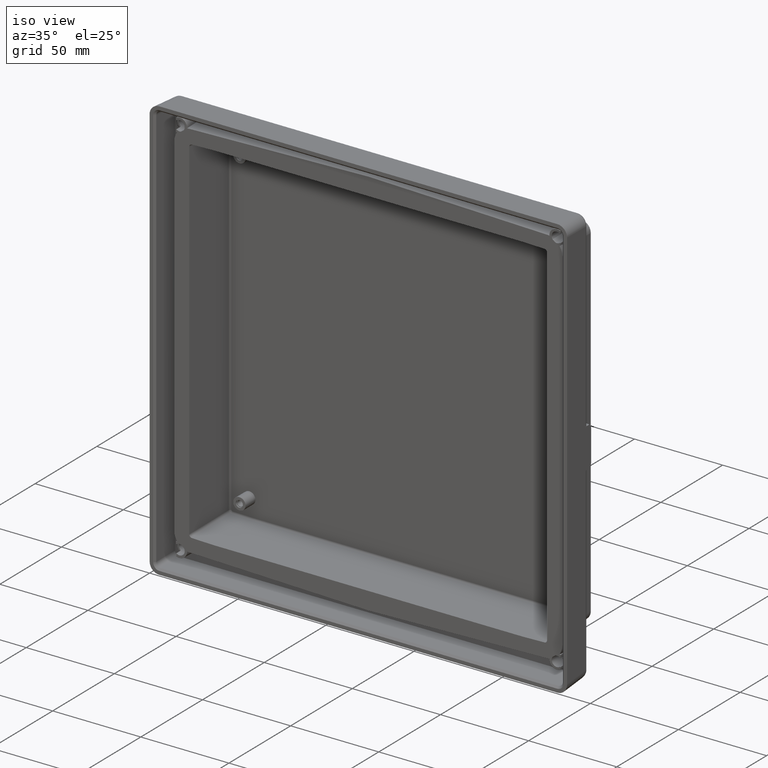
[diagram: clean part render]
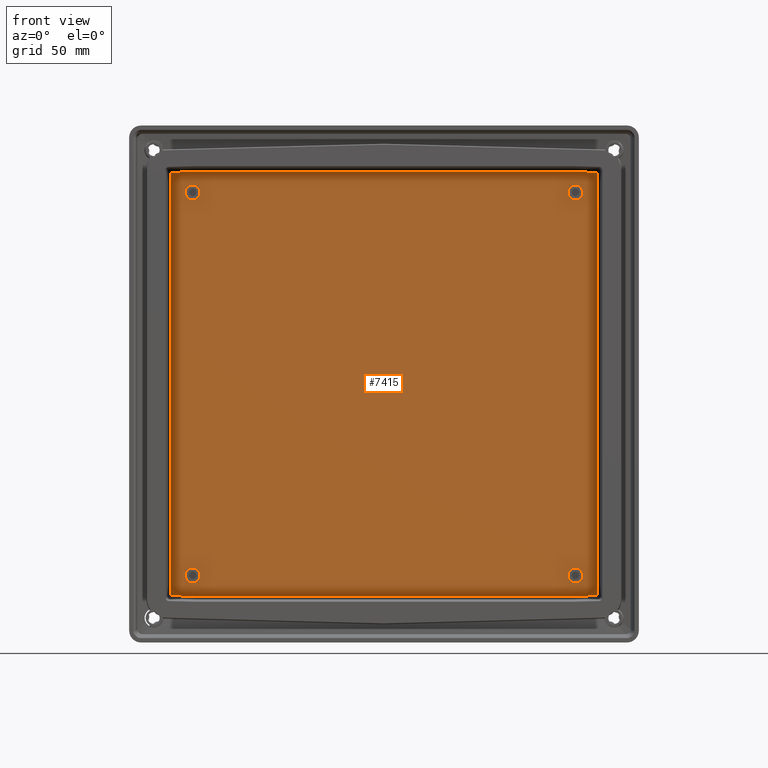
[diagram: tour spotlight — one face highlighted and labeled with its STEP entity id]
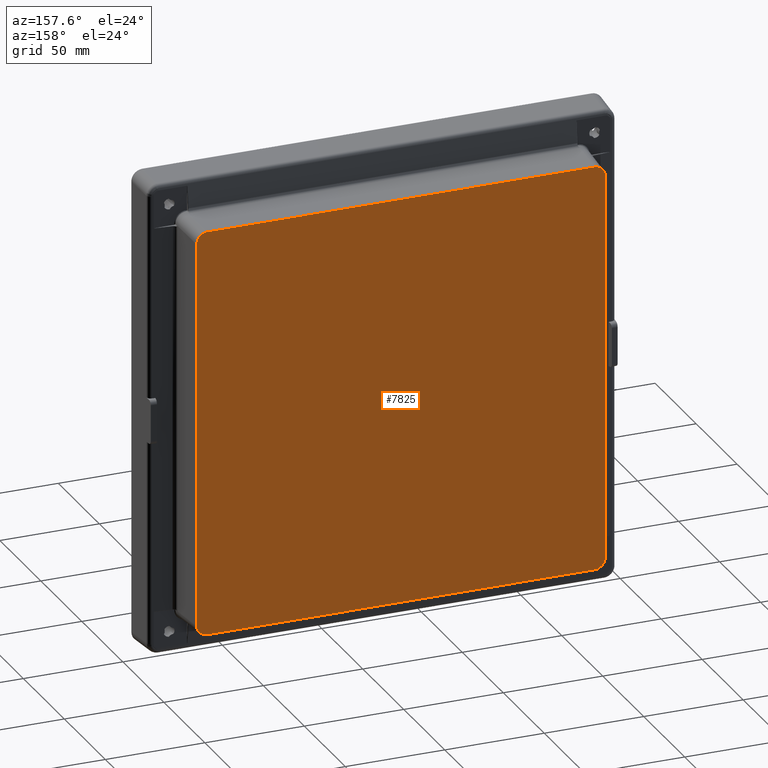
[diagram: tour spotlight — one face highlighted and labeled with its STEP entity id]
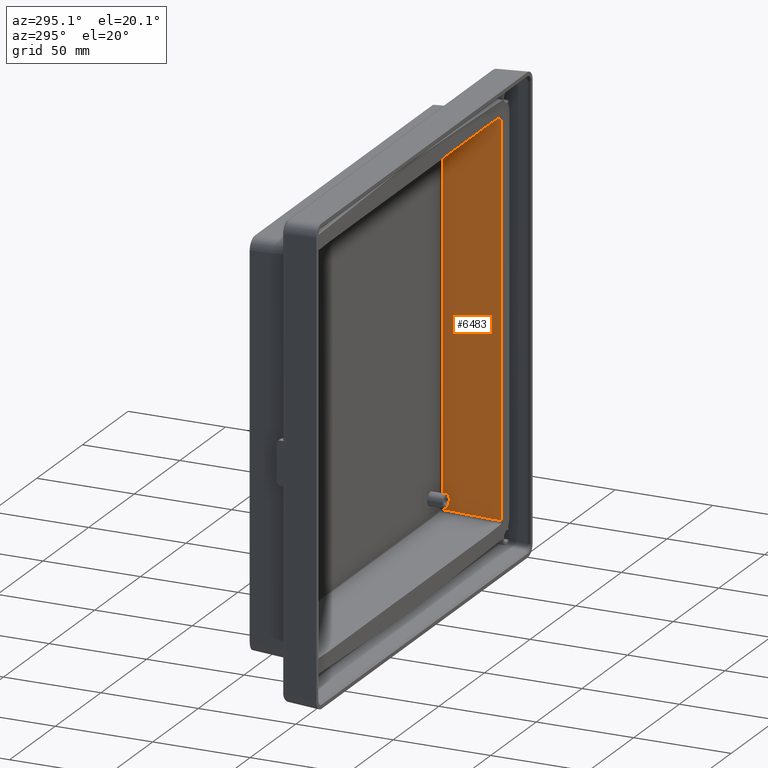
[diagram: tour spotlight — one face highlighted and labeled with its STEP entity id]
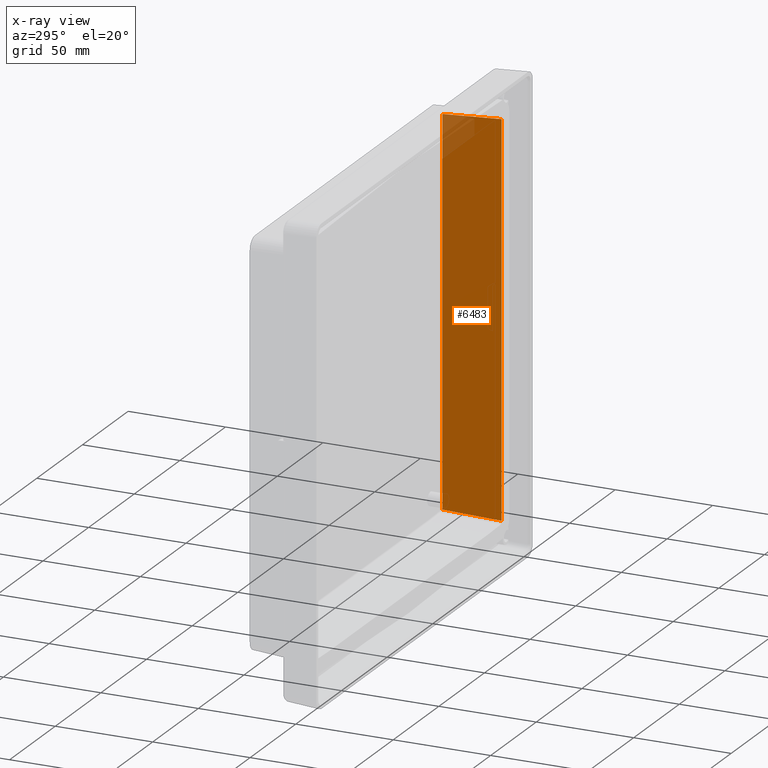
[diagram: x-ray of the same camera — body ghosted, this tour face saturated]
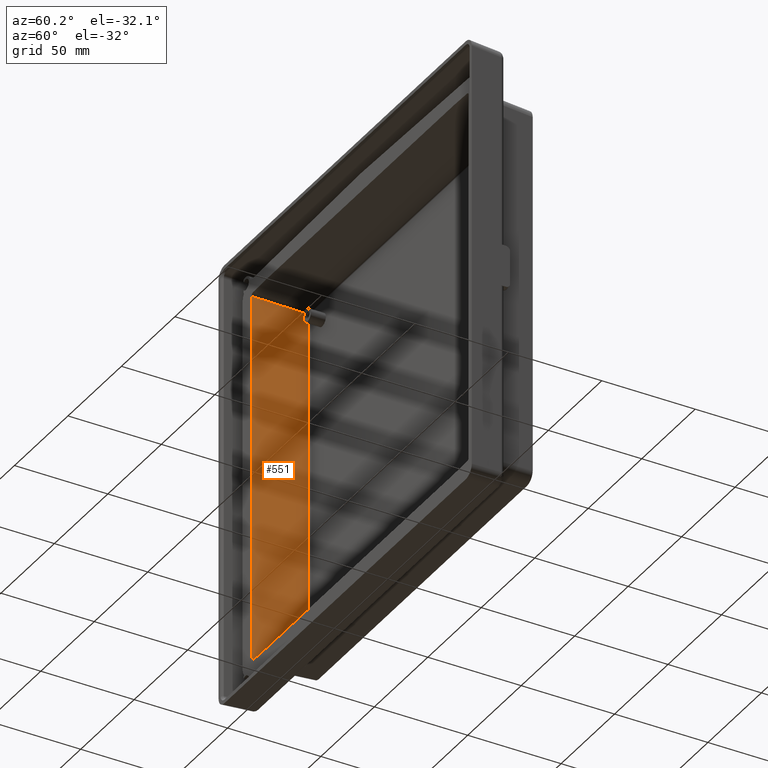
[diagram: tour spotlight — one face highlighted and labeled with its STEP entity id]
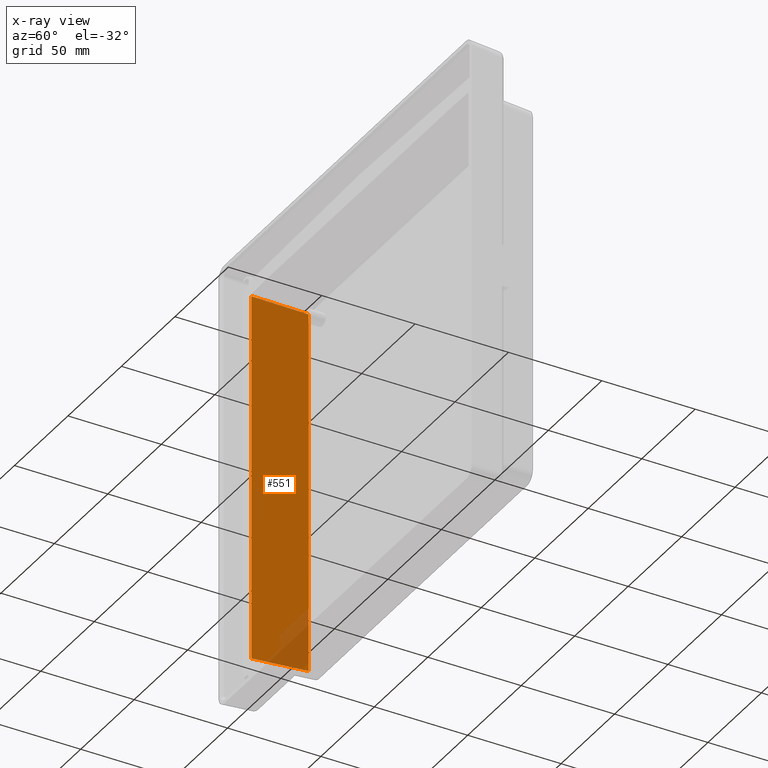
[diagram: x-ray of the same camera — body ghosted, this tour face saturated]
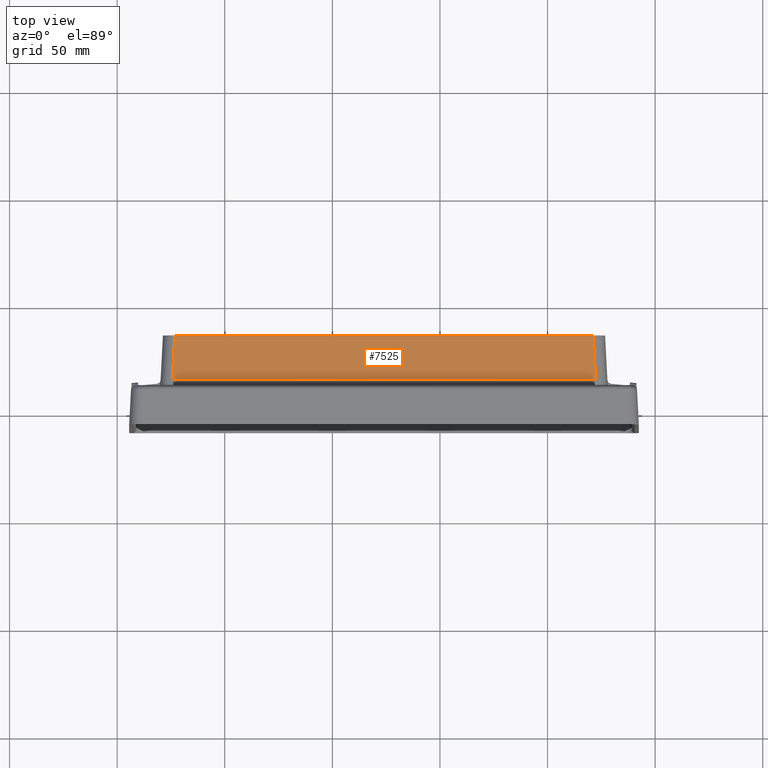
[diagram: tour spotlight — one face highlighted and labeled with its STEP entity id]
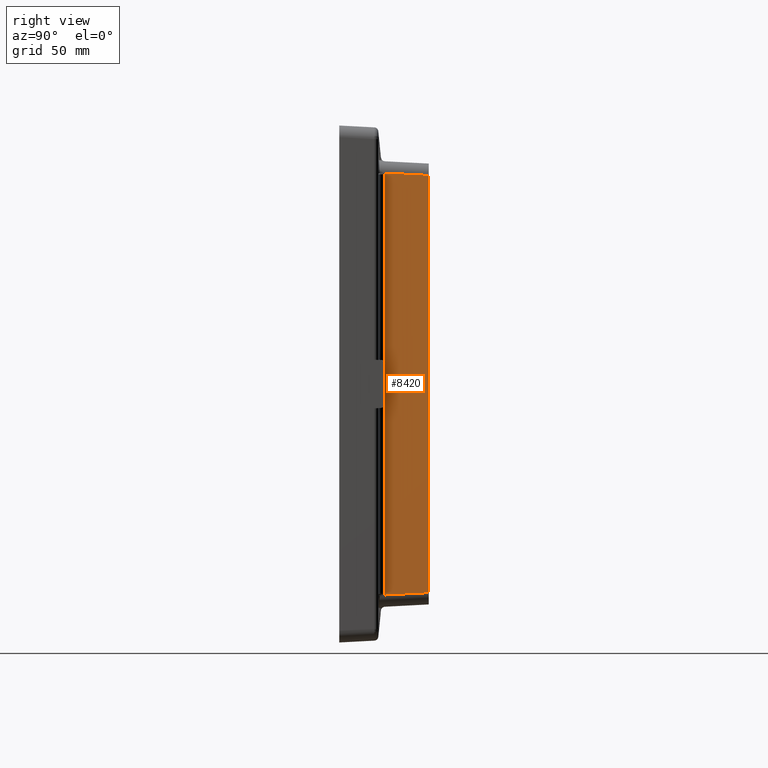
[diagram: tour spotlight — one face highlighted and labeled with its STEP entity id]
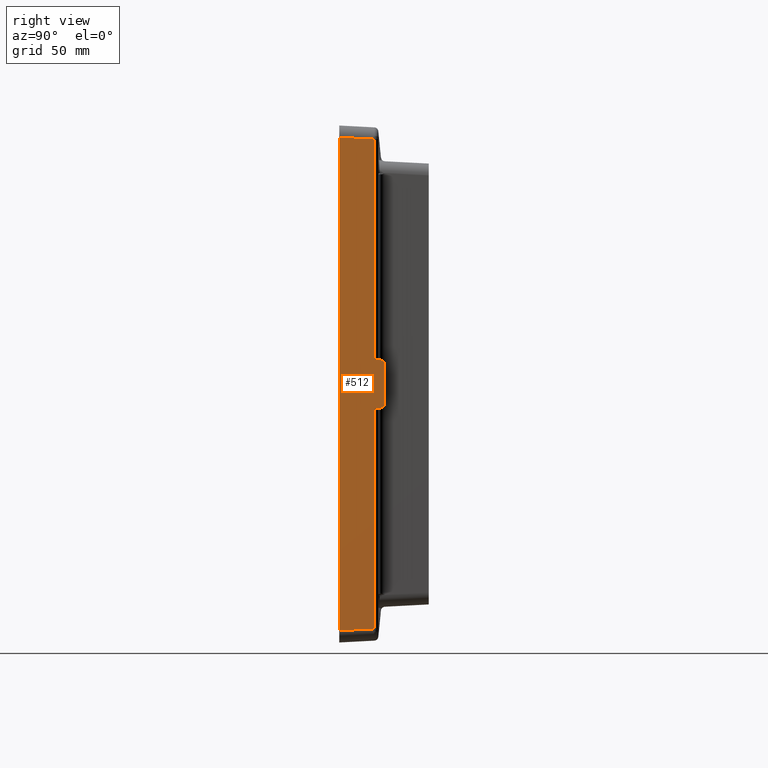
[diagram: tour spotlight — one face highlighted and labeled with its STEP entity id]
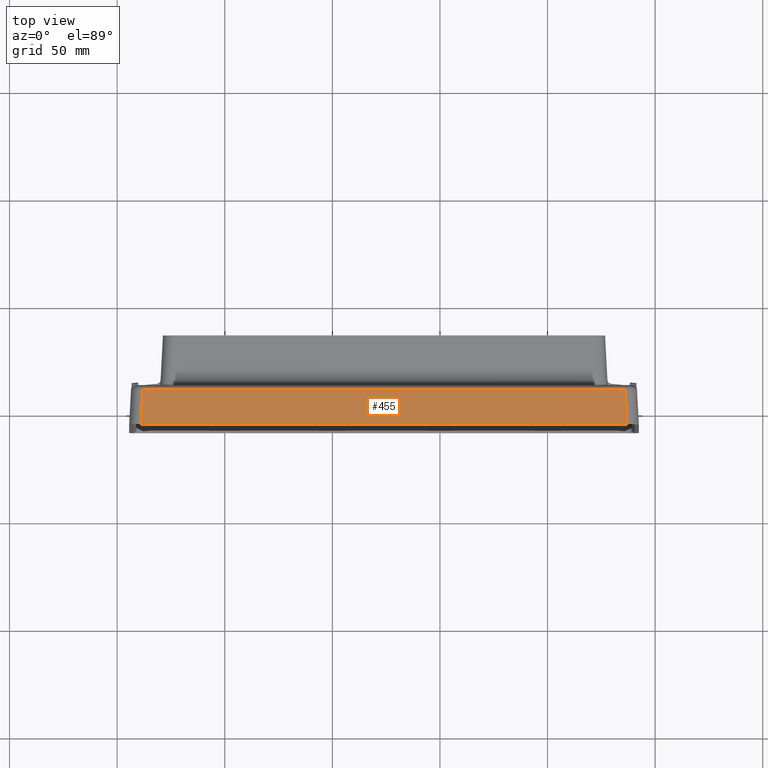
[diagram: tour spotlight — one face highlighted and labeled with its STEP entity id]
A machine part: a face-by-face anatomy tour. The part has 324 B-rep faces; the first image is the clean iso view, then the 8 largest visible faces are spotlighted one at a time (largest first), each with its STEP entity span.

Face 1 — front view, entity #7415. In plain terms, the highlighted planar face has unit normal (0, -1, 0).
Definition (entity closure, byte-faithful):
#230 = CARTESIAN_POINT ( 'NONE',  ( 122.9432359156047700, 30.59999999999999800, 97.85976046800033100 ) ) ;
#231 = CARTESIAN_POINT ( 'NONE',  ( 122.9431615252678800, 30.60000000000000100, 97.89502990754412800 ) ) ;
#232 = CARTESIAN_POINT ( 'NONE',  ( 122.9361414310676500, 30.59999999999999400, 97.96242638004548600 ) ) ;
#233 = CARTESIAN_POINT ( 'NONE',  ( 122.9058137563096400, 30.60000000000000500, 98.05770386708820800 ) ) ;
#234 = CARTESIAN_POINT ( 'NONE',  ( 122.8610039883024000, 30.60000000000000100, 98.13924234981173800 ) ) ;
#235 = CARTESIAN_POINT ( 'NONE',  ( 122.8075335270242600, 30.60000000000000100, 98.20526448707619200 ) ) ;
#236 = CARTESIAN_POINT ( 'NONE',  ( 122.7503707331741500, 30.59999999999999100, 98.25631136778589800 ) ) ;
#237 = CARTESIAN_POINT ( 'NONE',  ( 122.6923762115853000, 30.59999999999999400, 98.29465118033908800 ) ) ;
#238 = CARTESIAN_POINT ( 'NONE',  ( 122.6344633475008000, 30.60000000000000100, 98.32273617741788000 ) ) ;
#239 = CARTESIAN_POINT ( 'NONE',  ( 122.5764987361700800, 30.59999999999999800, 98.34242603937474300 ) ) ;
#240 = CARTESIAN_POINT ( 'NONE',  ( 122.5173560412868200, 30.59999999999999400, 98.35487516680144900 ) ) ;
#241 = CARTESIAN_POINT ( 'NONE',  ( 122.4774336677540700, 30.60000000000000100, 98.35836042277064500 ) ) ;
#242 = CARTESIAN_POINT ( 'NONE',  ( 122.4569916850825000, 30.59999999999999800, 98.35890413267750900 ) ) ;
#243 = CARTESIAN_POINT ( 'NONE',  ( 122.9432359156047700, 30.59999999999999800, 97.85976046800033100 ) ) ;
#244 = B_SPLINE_CURVE_WITH_KNOTS ( 'NONE', 3,
 ( #242, #241, #240, #239, #238, #237, #236, #235, #234, #233, #232, #231, #230 ),
 .UNSPECIFIED., .F., .F.,
 ( 4, 1, 1, 1, 1, 1, 1, 1, 1, 1, 4 ),
 ( 0.0000000000000000000, 6.101120129814861700E-005, 0.0001203563232530439600, 0.0001807230256382870500, 0.0002442631360700081100, 0.0003129145428053580300, 0.0003886339905708147600, 0.0004733029567117656300, 0.0005665261759073299700, 0.0006663120421994040900, 0.0007704621765961739600 ),
 .UNSPECIFIED. ) ;
#601 = VERTEX_POINT ( 'NONE', #1027 ) ;
#614 = EDGE_CURVE ( 'NONE', #722, #698, #1047, .T. ) ;
#631 = VERTEX_POINT ( 'NONE', #1089 ) ;
#634 = VERTEX_POINT ( 'NONE', #1083 ) ;
#642 = VERTEX_POINT ( 'NONE', #1100 ) ;
#648 = EDGE_CURVE ( 'NONE', #642, #661, #1090, .T. ) ;
#653 = EDGE_CURVE ( 'NONE', #634, #642, #1171, .T. ) ;
#657 = EDGE_CURVE ( 'NONE', #601, #634, #1151, .T. ) ;
#661 = VERTEX_POINT ( 'NONE', #1150 ) ;
#664 = EDGE_CURVE ( 'NONE', #631, #601, #1184, .T. ) ;
#682 = EDGE_CURVE ( 'NONE', #720, #1791, #1243, .T. ) ;
#698 = VERTEX_POINT ( 'NONE', #1281 ) ;
#701 = EDGE_CURVE ( 'NONE', #1791, #720, #1271, .T. ) ;
#704 = EDGE_CURVE ( 'NONE', #698, #722, #1310, .T. ) ;
#720 = VERTEX_POINT ( 'NONE', #1328 ) ;
#722 = VERTEX_POINT ( 'NONE', #1327 ) ;
#1027 = CARTESIAN_POINT ( 'NONE',  ( -74.45699168508248500, 30.59999999999999800, 98.35890413267750900 ) ) ;
#1043 = DIRECTION ( 'NONE',  ( 0.0000000000000000000, 0.0000000000000000000, 1.000000000000000000 ) ) ;
#1044 = DIRECTION ( 'NONE',  ( -0.0000000000000000000, -1.000000000000000000, -0.0000000000000000000 ) ) ;
#1045 = CARTESIAN_POINT ( 'NONE',  ( -64.89999999999999100, 30.59999999999999800, -89.00000000000000000 ) ) ;
#1046 = AXIS2_PLACEMENT_3D ( 'NONE', #1045, #1044, #1043 ) ;
#1047 = CIRCLE ( 'NONE', #1046, 3.470633844066012100 ) ;
#1083 = CARTESIAN_POINT ( 'NONE',  ( -74.94323591560476000, 30.59999999999999800, 97.85976046800033100 ) ) ;
#1089 = CARTESIAN_POINT ( 'NONE',  ( -63.59866556584685100, 30.59999999999999800, 98.64323940880845500 ) ) ;
#1090 = B_SPLINE_CURVE_WITH_KNOTS ( 'NONE', 3,
 ( #1167, #1166, #1165, #1164, #1163, #1162, #1161, #1160, #1159, #1158, #1157, #1156 ),
 .UNSPECIFIED., .F., .F.,
 ( 4, 1, 1, 1, 1, 1, 1, 1, 1, 4 ),
 ( 0.0000000000000000000, 6.218012055243488700E-005, 0.0001265483330495454400, 0.0001954100356270116500, 0.0002709798381781733700, 0.0003554819742508131600, 0.0004496149420318828200, 0.0005518123911961621000, 0.0006595177575147376600, 0.0007702638582198119300 ),
 .UNSPECIFIED. ) ;
#1100 = CARTESIAN_POINT ( 'NONE',  ( -74.94323591560476000, 30.59999999999999800, -97.85976046800033100 ) ) ;
#1143 = CARTESIAN_POINT ( 'NONE',  ( -74.51735604128680300, 30.59999999999999400, 98.35487516680144900 ) ) ;
#1144 = CARTESIAN_POINT ( 'NONE',  ( -74.47743366775407000, 30.60000000000000100, 98.35836042277064500 ) ) ;
#1145 = CARTESIAN_POINT ( 'NONE',  ( -74.45699168508248500, 30.59999999999999800, 98.35890413267750900 ) ) ;
#1150 = CARTESIAN_POINT ( 'NONE',  ( -74.45699168508248500, 30.59999999999999400, -98.35890413267750900 ) ) ;
#1151 = B_SPLINE_CURVE_WITH_KNOTS ( 'NONE', 3,
 ( #1145, #1144, #1143, #1195, #1194, #1193, #1192, #1191, #1190, #1189, #1188, #1187, #1186 ),
 .UNSPECIFIED., .F., .F.,
 ( 4, 1, 1, 1, 1, 1, 1, 1, 1, 1, 4 ),
 ( 0.0000000000000000000, 6.101120129814861700E-005, 0.0001203563232530439600, 0.0001807230256382870500, 0.0002442631360700081100, 0.0003129145428053580300, 0.0003886339905708147600, 0.0004733029567117656300, 0.0005665261759073299700, 0.0006663120421994040900, 0.0007704621765961739600 ),
 .UNSPECIFIED. ) ;
#1156 = CARTESIAN_POINT ( 'NONE',  ( -74.45699168508248500, 30.59999999999999400, -98.35890413267750900 ) ) ;
#1157 = CARTESIAN_POINT ( 'NONE',  ( -74.49455869572598500, 30.60000000000000100, -98.35782355624475300 ) ) ;
#1158 = CARTESIAN_POINT ( 'NONE',  ( -74.56643368692292000, 30.59999999999998700, -98.34795096963769400 ) ) ;
#1159 = CARTESIAN_POINT ( 'NONE',  ( -74.66773107819913900, 30.60000000000000500, -98.31034401890715900 ) ) ;
#1160 = CARTESIAN_POINT ( 'NONE',  ( -74.75375199215740500, 30.59999999999999800, -98.25556332710503700 ) ) ;
#1161 = CARTESIAN_POINT ( 'NONE',  ( -74.82177697974488200, 30.59999999999999400, -98.19041723951677600 ) ) ;
#1162 = CARTESIAN_POINT ( 'NONE',  ( -74.87176391755073700, 30.60000000000000100, -98.12149970699039200 ) ) ;
#1163 = CARTESIAN_POINT ( 'NONE',  ( -74.90624869167049800, 30.59999999999999400, -98.05309062501301300 ) ) ;
#1164 = CARTESIAN_POINT ( 'NONE',  ( -74.92835314294806900, 30.59999999999999800, -97.98688185146492900 ) ) ;
#1165 = CARTESIAN_POINT ( 'NONE',  ( -74.94061367443733000, 30.59999999999999800, -97.92265817338604000 ) ) ;
#1166 = CARTESIAN_POINT ( 'NONE',  ( -74.94322650830579800, 30.59999999999999800, -97.88060837027265400 ) ) ;
#1167 = CARTESIAN_POINT ( 'NONE',  ( -74.94323591560476000, 30.59999999999999800, -97.85976046800033100 ) ) ;
#1168 = DIRECTION ( 'NONE',  ( 0.0000000000000000000, 0.0000000000000000000, -1.000000000000000000 ) ) ;
#1169 = VECTOR ( 'NONE', #1168, 1000.000000000000000 ) ;
#1170 = CARTESIAN_POINT ( 'NONE',  ( -74.94323591560476000, 30.59999999999999800, -6.938893903907228400E-015 ) ) ;
#1171 = LINE ( 'NONE', #1170, #1169 ) ;
#1181 = DIRECTION ( 'NONE',  ( -0.9996573249755573700, 0.0000000000000000000, -0.02617694830787228200 ) ) ;
#1182 = VECTOR ( 'NONE', #1181, 1000.000000000000000 ) ;
#1183 = CARTESIAN_POINT ( 'NONE',  ( -69.02782862546203500, 30.59999999999999800, 98.50107177074305300 ) ) ;
#1184 = LINE ( 'NONE', #1183, #1182 ) ;
#1186 = CARTESIAN_POINT ( 'NONE',  ( -74.94323591560476000, 30.59999999999999800, 97.85976046800033100 ) ) ;
#1187 = CARTESIAN_POINT ( 'NONE',  ( -74.94316152526785400, 30.60000000000000100, 97.89502990754412800 ) ) ;
#1188 = CARTESIAN_POINT ( 'NONE',  ( -74.93614143106766800, 30.59999999999999400, 97.96242638004548600 ) ) ;
#1189 = CARTESIAN_POINT ( 'NONE',  ( -74.90581375630961200, 30.60000000000000500, 98.05770386708820800 ) ) ;
#1190 = CARTESIAN_POINT ( 'NONE',  ( -74.86100398830238600, 30.60000000000000100, 98.13924234981173800 ) ) ;
#1191 = CARTESIAN_POINT ( 'NONE',  ( -74.80753352702424800, 30.60000000000000100, 98.20526448707619200 ) ) ;
#1192 = CARTESIAN_POINT ( 'NONE',  ( -74.75037073317412300, 30.59999999999999100, 98.25631136778589800 ) ) ;
#1193 = CARTESIAN_POINT ( 'NONE',  ( -74.69237621158528400, 30.59999999999999400, 98.29465118033908800 ) ) ;
#1194 = CARTESIAN_POINT ( 'NONE',  ( -74.63446334750077000, 30.60000000000000100, 98.32273617741788000 ) ) ;
#1195 = CARTESIAN_POINT ( 'NONE',  ( -74.57649873617006600, 30.59999999999999800, 98.34242603937474300 ) ) ;
#1239 = DIRECTION ( 'NONE',  ( 0.0000000000000000000, 0.0000000000000000000, 1.000000000000000000 ) ) ;
#1240 = DIRECTION ( 'NONE',  ( -0.0000000000000000000, -1.000000000000000000, -0.0000000000000000000 ) ) ;
#1241 = CARTESIAN_POINT ( 'NONE',  ( -64.89999999999999100, 30.59999999999999800, 89.00000000000000000 ) ) ;
#1242 = AXIS2_PLACEMENT_3D ( 'NONE', #1241, #1240, #1239 ) ;
#1243 = CIRCLE ( 'NONE', #1242, 3.470633844066012100 ) ;
#1267 = DIRECTION ( 'NONE',  ( 0.0000000000000000000, 0.0000000000000000000, 1.000000000000000000 ) ) ;
#1268 = DIRECTION ( 'NONE',  ( -0.0000000000000000000, -1.000000000000000000, -0.0000000000000000000 ) ) ;
#1269 = CARTESIAN_POINT ( 'NONE',  ( -64.89999999999999100, 30.59999999999999800, 89.00000000000000000 ) ) ;
#1270 = AXIS2_PLACEMENT_3D ( 'NONE', #1269, #1268, #1267 ) ;
#1271 = CIRCLE ( 'NONE', #1270, 3.470633844066012100 ) ;
#1281 = CARTESIAN_POINT ( 'NONE',  ( -64.89999999999999100, 30.59999999999999800, -92.47063384406601500 ) ) ;
#1306 = DIRECTION ( 'NONE',  ( 0.0000000000000000000, 0.0000000000000000000, 1.000000000000000000 ) ) ;
#1307 = DIRECTION ( 'NONE',  ( -0.0000000000000000000, -1.000000000000000000, -0.0000000000000000000 ) ) ;
#1308 = CARTESIAN_POINT ( 'NONE',  ( -64.89999999999999100, 30.59999999999999800, -89.00000000000000000 ) ) ;
#1309 = AXIS2_PLACEMENT_3D ( 'NONE', #1308, #1307, #1306 ) ;
#1310 = CIRCLE ( 'NONE', #1309, 3.470633844066012100 ) ;
#1327 = CARTESIAN_POINT ( 'NONE',  ( -64.89999999999999100, 30.59999999999999800, -85.52936615593398500 ) ) ;
#1328 = CARTESIAN_POINT ( 'NONE',  ( -64.89999999999999100, 30.59999999999999800, 92.47063384406601500 ) ) ;
#1652 = CARTESIAN_POINT ( 'NONE',  ( -64.89999999999999100, 30.59999999999999800, 85.52936615593398500 ) ) ;
#1791 = VERTEX_POINT ( 'NONE', #1652 ) ;
#3327 = VERTEX_POINT ( 'NONE', #4337 ) ;
#3505 = VERTEX_POINT ( 'NONE', #4797 ) ;
#3531 = EDGE_CURVE ( 'NONE', #9771, #3539, #4912, .T. ) ;
#3539 = VERTEX_POINT ( 'NONE', #4897 ) ;
#3616 = EDGE_CURVE ( 'NONE', #3327, #3505, #5107, .T. ) ;
#3618 = VERTEX_POINT ( 'NONE', #5103 ) ;
#3621 = EDGE_CURVE ( 'NONE', #3539, #3618, #5096, .T. ) ;
#3652 = EDGE_CURVE ( 'NONE', #3618, #3505, #5187, .T. ) ;
#3820 = EDGE_CURVE ( 'NONE', #661, #3327, #5694, .T. ) ;
#4337 = CARTESIAN_POINT ( 'NONE',  ( -63.59866556577620100, 30.59999999999999800, -98.64323940880859700 ) ) ;
#4797 = CARTESIAN_POINT ( 'NONE',  ( 111.5986655658423800, 30.59999999999999800, -98.64323940880859700 ) ) ;
#4897 = CARTESIAN_POINT ( 'NONE',  ( 122.9432359156047700, 30.59999999999999800, -97.85976046800034600 ) ) ;
#4909 = DIRECTION ( 'NONE',  ( 0.0000000000000000000, 0.0000000000000000000, -1.000000000000000000 ) ) ;
#4910 = VECTOR ( 'NONE', #4909, 1000.000000000000000 ) ;
#4911 = CARTESIAN_POINT ( 'NONE',  ( 122.9432359156047700, 30.59999999999999800, -6.938893903907228400E-015 ) ) ;
#4912 = LINE ( 'NONE', #4911, #4910 ) ;
#5089 = CARTESIAN_POINT ( 'NONE',  ( 122.8717639175507500, 30.60000000000000100, -98.12149970699039200 ) ) ;
#5090 = CARTESIAN_POINT ( 'NONE',  ( 122.9062486916705300, 30.59999999999999400, -98.05309062501301300 ) ) ;
#5091 = CARTESIAN_POINT ( 'NONE',  ( 122.9283531429480500, 30.59999999999999800, -97.98688185146492900 ) ) ;
#5092 = CARTESIAN_POINT ( 'NONE',  ( 122.9406136744373300, 30.59999999999999800, -97.92265817338604000 ) ) ;
#5093 = CARTESIAN_POINT ( 'NONE',  ( 122.9432265083058300, 30.59999999999999800, -97.88060837027265400 ) ) ;
#5094 = CARTESIAN_POINT ( 'NONE',  ( 122.9432359156047700, 30.59999999999999800, -97.85976046800034600 ) ) ;
#5096 = B_SPLINE_CURVE_WITH_KNOTS ( 'NONE', 3,
 ( #5094, #5093, #5092, #5091, #5090, #5089, #5142, #5141, #5140, #5139, #5138, #5137 ),
 .UNSPECIFIED., .F., .F.,
 ( 4, 1, 1, 1, 1, 1, 1, 1, 1, 4 ),
 ( 0.0000000000000000000, 6.218012055243488700E-005, 0.0001265483330495454400, 0.0001954100356270116500, 0.0002709798381781733700, 0.0003554819742508131600, 0.0004496149420318828200, 0.0005518123911961621000, 0.0006595177575147506700, 0.0007702638582198111700 ),
 .UNSPECIFIED. ) ;
#5103 = CARTESIAN_POINT ( 'NONE',  ( 122.4569916851418700, 30.59999999999999800, -98.35890413267594600 ) ) ;
#5104 = DIRECTION ( 'NONE',  ( 1.000000000000000000, 0.0000000000000000000, 0.0000000000000000000 ) ) ;
#5105 = VECTOR ( 'NONE', #5104, 1000.000000000000000 ) ;
#5106 = CARTESIAN_POINT ( 'NONE',  ( 24.00000000000000700, 30.59999999999999800, -98.64323940880859700 ) ) ;
#5107 = LINE ( 'NONE', #5106, #5105 ) ;
#5137 = CARTESIAN_POINT ( 'NONE',  ( 122.4569916851418700, 30.59999999999999800, -98.35890413267594600 ) ) ;
#5138 = CARTESIAN_POINT ( 'NONE',  ( 122.4945586957260000, 30.60000000000000100, -98.35782355624475300 ) ) ;
#5139 = CARTESIAN_POINT ( 'NONE',  ( 122.5664336869229300, 30.60000000000000500, -98.34795096963773600 ) ) ;
#5140 = CARTESIAN_POINT ( 'NONE',  ( 122.6677310781991300, 30.59999999999999800, -98.31034401890713100 ) ) ;
#5141 = CARTESIAN_POINT ( 'NONE',  ( 122.7537519921574200, 30.59999999999999800, -98.25556332710505100 ) ) ;
#5142 = CARTESIAN_POINT ( 'NONE',  ( 122.8217769797449100, 30.59999999999999400, -98.19041723951677600 ) ) ;
#5184 = DIRECTION ( 'NONE',  ( -0.9996573249755572600, 0.0000000000000000000, -0.02617694830787348600 ) ) ;
#5185 = VECTOR ( 'NONE', #5184, 1000.000000000000200 ) ;
#5186 = CARTESIAN_POINT ( 'NONE',  ( 117.0278286254622900, 30.59999999999999800, -98.50107177074305300 ) ) ;
#5187 = LINE ( 'NONE', #5186, #5185 ) ;
#5691 = DIRECTION ( 'NONE',  ( 0.9996573249755572600, 0.0000000000000000000, -0.02617694830787348600 ) ) ;
#5692 = VECTOR ( 'NONE', #5691, 1000.000000000000200 ) ;
#5693 = CARTESIAN_POINT ( 'NONE',  ( -69.02782862546227700, 30.59999999999999800, -98.50107177074305300 ) ) ;
#5694 = LINE ( 'NONE', #5693, #5692 ) ;
#6597 = VERTEX_POINT ( 'NONE', #9872 ) ;
#6619 = VERTEX_POINT ( 'NONE', #9940 ) ;
#6627 = EDGE_CURVE ( 'NONE', #6619, #6642, #9985, .T. ) ;
#6642 = VERTEX_POINT ( 'NONE', #9959 ) ;
#6677 = VERTEX_POINT ( 'NONE', #10043 ) ;
#6693 = EDGE_CURVE ( 'NONE', #6677, #6597, #10112, .T. ) ;
#7382 = EDGE_LOOP ( 'NONE', ( #7426, #7422 ) ) ;
#7393 = ORIENTED_EDGE ( 'NONE', *, *, #701, .F. ) ;
#7394 = EDGE_LOOP ( 'NONE', ( #7395, #7393 ) ) ;
#7395 = ORIENTED_EDGE ( 'NONE', *, *, #682, .F. ) ;
#7403 = ORIENTED_EDGE ( 'NONE', *, *, #6693, .T. ) ;
#7404 = ORIENTED_EDGE ( 'NONE', *, *, #8013, .T. ) ;
#7407 = ORIENTED_EDGE ( 'NONE', *, *, #8096, .T. ) ;
#7408 = EDGE_LOOP ( 'NONE', ( #7407, #7417 ) ) ;
#7409 = ORIENTED_EDGE ( 'NONE', *, *, #8106, .F. ) ;
#7411 = ORIENTED_EDGE ( 'NONE', *, *, #3531, .F. ) ;
#7412 = ORIENTED_EDGE ( 'NONE', *, *, #9760, .F. ) ;
#7413 = ORIENTED_EDGE ( 'NONE', *, *, #8113, .T. ) ;
#7414 = ORIENTED_EDGE ( 'NONE', *, *, #3621, .F. ) ;
#7415 = ADVANCED_FACE ( 'NONE', ( #12456, #12422, #12421, #12445, #12444 ), #12455, .T. ) ;
#7417 = ORIENTED_EDGE ( 'NONE', *, *, #6627, .T. ) ;
#7418 = ORIENTED_EDGE ( 'NONE', *, *, #3652, .F. ) ;
#7419 = ORIENTED_EDGE ( 'NONE', *, *, #3616, .T. ) ;
#7421 = EDGE_LOOP ( 'NONE', ( #7404, #7403 ) ) ;
#7422 = ORIENTED_EDGE ( 'NONE', *, *, #704, .F. ) ;
#7425 = EDGE_LOOP ( 'NONE', ( #7419, #7418, #7414, #7411, #7412, #7409, #7413, #7452, #7446, #7445, #7437, #7438 ) ) ;
#7426 = ORIENTED_EDGE ( 'NONE', *, *, #614, .F. ) ;
#7437 = ORIENTED_EDGE ( 'NONE', *, *, #648, .T. ) ;
#7438 = ORIENTED_EDGE ( 'NONE', *, *, #3820, .T. ) ;
#7445 = ORIENTED_EDGE ( 'NONE', *, *, #653, .T. ) ;
#7446 = ORIENTED_EDGE ( 'NONE', *, *, #657, .T. ) ;
#7452 = ORIENTED_EDGE ( 'NONE', *, *, #664, .T. ) ;
#8013 = EDGE_CURVE ( 'NONE', #6597, #6677, #14368, .T. ) ;
#8096 = EDGE_CURVE ( 'NONE', #6642, #6619, #14582, .T. ) ;
#8106 = EDGE_CURVE ( 'NONE', #8108, #8111, #14653, .T. ) ;
#8108 = VERTEX_POINT ( 'NONE', #14649 ) ;
#8111 = VERTEX_POINT ( 'NONE', #14648 ) ;
#8113 = EDGE_CURVE ( 'NONE', #8108, #631, #14647, .T. ) ;
#9760 = EDGE_CURVE ( 'NONE', #8111, #9771, #244, .T. ) ;
#9771 = VERTEX_POINT ( 'NONE', #243 ) ;
#9872 = CARTESIAN_POINT ( 'NONE',  ( 112.9000000000000100, 30.59999999999999800, 85.52936615593398500 ) ) ;
#9940 = CARTESIAN_POINT ( 'NONE',  ( 112.9000000000000100, 30.59999999999999800, -85.52936615593398500 ) ) ;
#9959 = CARTESIAN_POINT ( 'NONE',  ( 112.9000000000000100, 30.59999999999999800, -92.47063384406601500 ) ) ;
#9980 = DIRECTION ( 'NONE',  ( 0.0000000000000000000, 0.0000000000000000000, -1.000000000000000000 ) ) ;
#9981 = DIRECTION ( 'NONE',  ( -0.0000000000000000000, 1.000000000000000000, -0.0000000000000000000 ) ) ;
#9983 = CARTESIAN_POINT ( 'NONE',  ( 112.9000000000000100, 30.59999999999999800, -89.00000000000000000 ) ) ;
#9984 = AXIS2_PLACEMENT_3D ( 'NONE', #9983, #9981, #9980 ) ;
#9985 = CIRCLE ( 'NONE', #9984, 3.470633844066012100 ) ;
#10043 = CARTESIAN_POINT ( 'NONE',  ( 112.9000000000000100, 30.59999999999999800, 92.47063384406601500 ) ) ;
#10107 = DIRECTION ( 'NONE',  ( 0.0000000000000000000, 0.0000000000000000000, -1.000000000000000000 ) ) ;
#10108 = DIRECTION ( 'NONE',  ( -0.0000000000000000000, 1.000000000000000000, -0.0000000000000000000 ) ) ;
#10110 = CARTESIAN_POINT ( 'NONE',  ( 112.9000000000000100, 30.59999999999999800, 89.00000000000000000 ) ) ;
#10111 = AXIS2_PLACEMENT_3D ( 'NONE', #10110, #10108, #10107 ) ;
#10112 = CIRCLE ( 'NONE', #10111, 3.470633844066012100 ) ;
#12421 = FACE_BOUND ( 'NONE', #7394, .T. ) ;
#12422 = FACE_BOUND ( 'NONE', #7421, .T. ) ;
#12443 = AXIS2_PLACEMENT_3D ( 'NONE', #12491, #12490, #12489 ) ;
#12444 = FACE_OUTER_BOUND ( 'NONE', #7425, .T. ) ;
#12445 = FACE_BOUND ( 'NONE', #7382, .T. ) ;
#12455 = PLANE ( 'NONE',  #12443 ) ;
#12456 = FACE_BOUND ( 'NONE', #7408, .T. ) ;
#12489 = DIRECTION ( 'NONE',  ( 0.0000000000000000000, -0.0000000000000000000, -1.000000000000000000 ) ) ;
#12490 = DIRECTION ( 'NONE',  ( 0.0000000000000000000, -1.000000000000000000, 0.0000000000000000000 ) ) ;
#12491 = CARTESIAN_POINT ( 'NONE',  ( 0.0000000000000000000, 30.59999999999999800, 0.0000000000000000000 ) ) ;
#14364 = DIRECTION ( 'NONE',  ( 0.0000000000000000000, 0.0000000000000000000, -1.000000000000000000 ) ) ;
#14365 = DIRECTION ( 'NONE',  ( -0.0000000000000000000, 1.000000000000000000, -0.0000000000000000000 ) ) ;
#14366 = CARTESIAN_POINT ( 'NONE',  ( 112.9000000000000100, 30.59999999999999800, 89.00000000000000000 ) ) ;
#14367 = AXIS2_PLACEMENT_3D ( 'NONE', #14366, #14365, #14364 ) ;
#14368 = CIRCLE ( 'NONE', #14367, 3.470633844066012100 ) ;
#14582 = CIRCLE ( 'NONE', #14628, 3.470633844066012100 ) ;
#14625 = DIRECTION ( 'NONE',  ( 0.0000000000000000000, 0.0000000000000000000, -1.000000000000000000 ) ) ;
#14626 = DIRECTION ( 'NONE',  ( -0.0000000000000000000, 1.000000000000000000, -0.0000000000000000000 ) ) ;
#14627 = CARTESIAN_POINT ( 'NONE',  ( 112.9000000000000100, 30.59999999999999800, -89.00000000000000000 ) ) ;
#14628 = AXIS2_PLACEMENT_3D ( 'NONE', #14627, #14626, #14625 ) ;
#14644 = DIRECTION ( 'NONE',  ( -1.000000000000000000, 0.0000000000000000000, 0.0000000000000000000 ) ) ;
#14645 = VECTOR ( 'NONE', #14644, 1000.000000000000000 ) ;
#14646 = CARTESIAN_POINT ( 'NONE',  ( 24.00000000000000700, 30.59999999999999800, 98.64323940880859700 ) ) ;
#14647 = LINE ( 'NONE', #14646, #14645 ) ;
#14648 = CARTESIAN_POINT ( 'NONE',  ( 122.4569916850825000, 30.59999999999999800, 98.35890413267750900 ) ) ;
#14649 = CARTESIAN_POINT ( 'NONE',  ( 111.5986655657994800, 30.59999999999999800, 98.64323940880879600 ) ) ;
#14650 = DIRECTION ( 'NONE',  ( 0.9996573249755573700, 0.0000000000000000000, -0.02617694830787228200 ) ) ;
#14651 = VECTOR ( 'NONE', #14650, 1000.000000000000000 ) ;
#14652 = CARTESIAN_POINT ( 'NONE',  ( 117.0278286254620500, 30.59999999999999800, 98.50107177074305300 ) ) ;
#14653 = LINE ( 'NONE', #14652, #14651 ) ;

Face 2 — auxiliary view, entity #7825. In plain terms, the highlighted planar face has unit normal (-0, 1, 0).
Definition (entity closure, byte-faithful):
#7301 = VERTEX_POINT ( 'NONE', #12209 ) ;
#7305 = VERTEX_POINT ( 'NONE', #12240 ) ;
#7313 = EDGE_CURVE ( 'NONE', #7305, #7301, #12261, .T. ) ;
#7466 = EDGE_CURVE ( 'NONE', #7470, #7305, #12549, .T. ) ;
#7470 = VERTEX_POINT ( 'NONE', #12539 ) ;
#7608 = EDGE_CURVE ( 'NONE', #7610, #7470, #13505, .T. ) ;
#7610 = VERTEX_POINT ( 'NONE', #13517 ) ;
#7736 = EDGE_CURVE ( 'NONE', #7763, #7301, #13870, .T. ) ;
#7740 = EDGE_LOOP ( 'NONE', ( #7758, #7779, #7765, #7781, #7834, #7807, #7797, #7784 ) ) ;
#7758 = ORIENTED_EDGE ( 'NONE', *, *, #7736, .F. ) ;
#7763 = VERTEX_POINT ( 'NONE', #13892 ) ;
#7765 = ORIENTED_EDGE ( 'NONE', *, *, #7776, .F. ) ;
#7768 = VERTEX_POINT ( 'NONE', #13891 ) ;
#7774 = EDGE_CURVE ( 'NONE', #7768, #7763, #13928, .T. ) ;
#7775 = VERTEX_POINT ( 'NONE', #13929 ) ;
#7776 = EDGE_CURVE ( 'NONE', #7775, #7768, #13923, .T. ) ;
#7779 = ORIENTED_EDGE ( 'NONE', *, *, #7774, .F. ) ;
#7781 = ORIENTED_EDGE ( 'NONE', *, *, #7782, .F. ) ;
#7782 = EDGE_CURVE ( 'NONE', #7783, #7775, #13917, .T. ) ;
#7783 = VERTEX_POINT ( 'NONE', #13919 ) ;
#7784 = ORIENTED_EDGE ( 'NONE', *, *, #7313, .T. ) ;
#7797 = ORIENTED_EDGE ( 'NONE', *, *, #7466, .T. ) ;
#7807 = ORIENTED_EDGE ( 'NONE', *, *, #7608, .T. ) ;
#7825 = ADVANCED_FACE ( 'NONE', ( #14023 ), #14022, .T. ) ;
#7834 = ORIENTED_EDGE ( 'NONE', *, *, #7841, .F. ) ;
#7841 = EDGE_CURVE ( 'NONE', #7610, #7783, #14045, .T. ) ;
#12209 = CARTESIAN_POINT ( 'NONE',  ( -73.24352043232694600, 33.59999999999999400, 102.4390990565048000 ) ) ;
#12240 = CARTESIAN_POINT ( 'NONE',  ( -78.73909905650496900, 33.59999999999999400, 96.94352044484402600 ) ) ;
#12257 = CARTESIAN_POINT ( 'NONE',  ( -73.24352043232694600, 33.59999999999999400, 102.4390990565048000 ) ) ;
#12258 = CARTESIAN_POINT ( 'NONE',  ( -76.46457959532168000, 33.59999999999999400, 102.4390994976249200 ) ) ;
#12259 = CARTESIAN_POINT ( 'NONE',  ( -78.73909949030857500, 33.59999999999999400, 100.1645796078187200 ) ) ;
#12260 = CARTESIAN_POINT ( 'NONE',  ( -78.73909905650496900, 33.59999999999999400, 96.94352044484402600 ) ) ;
#12261 =( BOUNDED_CURVE ( )  B_SPLINE_CURVE ( 3, ( #12260, #12259, #12258, #12257 ),
 .UNSPECIFIED., .F., .T. ) 
 B_SPLINE_CURVE_WITH_KNOTS ( ( 4, 4 ),
 ( 2.357564020115413300, 3.925621289335844200 ),
 .UNSPECIFIED. ) 
 CURVE ( )  GEOMETRIC_REPRESENTATION_ITEM ( )  RATIONAL_B_SPLINE_CURVE ( ( 1.000000000000000000, 0.8053830138989687100, 0.8053830138989687100, 1.000000000000000000 ) ) 
 REPRESENTATION_ITEM ( '' )  );
#12539 = CARTESIAN_POINT ( 'NONE',  ( -78.73909949692003400, 33.59999999999999400, -96.94352042101577600 ) ) ;
#12546 = DIRECTION ( 'NONE',  ( 4.543007228705305900E-009, 0.0000000000000000000, 1.000000000000000000 ) ) ;
#12547 = VECTOR ( 'NONE', #12546, 1000.000000000000000 ) ;
#12548 = CARTESIAN_POINT ( 'NONE',  ( -78.73909905650494100, 33.59999999999999400, -1.206451605284542000E-009 ) ) ;
#12549 = LINE ( 'NONE', #12548, #12547 ) ;
#13501 = CARTESIAN_POINT ( 'NONE',  ( -78.73909949692003400, 33.59999999999999400, -96.94352042101577600 ) ) ;
#13502 = CARTESIAN_POINT ( 'NONE',  ( -78.73909950423669100, 33.59999999999999400, -100.1645795945226500 ) ) ;
#13503 = CARTESIAN_POINT ( 'NONE',  ( -76.46457960702025500, 33.59999999999999400, -102.4390994969198100 ) ) ;
#13504 = CARTESIAN_POINT ( 'NONE',  ( -73.24352043353343300, 33.59999998849101400, -102.4390992773154500 ) ) ;
#13505 =( BOUNDED_CURVE ( )  B_SPLINE_CURVE ( 3, ( #13504, #13503, #13502, #13501 ),
 .UNSPECIFIED., .F., .T. ) 
 B_SPLINE_CURVE_WITH_KNOTS ( ( 4, 4 ),
 ( 2.357564018062579000, 3.925621291388182900 ),
 .UNSPECIFIED. ) 
 CURVE ( )  GEOMETRIC_REPRESENTATION_ITEM ( )  RATIONAL_B_SPLINE_CURVE ( ( 1.000000000000000000, 0.8053830129326962100, 0.8053830129326962100, 1.000000000000000000 ) ) 
 REPRESENTATION_ITEM ( '' )  );
#13517 = CARTESIAN_POINT ( 'NONE',  ( -73.24352043353343300, 33.59999998849101400, -102.4390992773154500 ) ) ;
#13864 = DIRECTION ( 'NONE',  ( -1.000000000000000000, 0.0000000000000000000, 0.0000000000000000000 ) ) ;
#13865 = VECTOR ( 'NONE', #13864, 1000.000000000000000 ) ;
#13866 = CARTESIAN_POINT ( 'NONE',  ( 24.00000000000000700, 33.59999999999999400, 102.4390994969197700 ) ) ;
#13870 = LINE ( 'NONE', #13866, #13865 ) ;
#13891 = CARTESIAN_POINT ( 'NONE',  ( 126.7390992761094100, 33.60000001150896800, 96.94352043236089900 ) ) ;
#13892 = CARTESIAN_POINT ( 'NONE',  ( 121.2435204335332900, 33.59999999999999400, 102.4390994969197800 ) ) ;
#13913 = CARTESIAN_POINT ( 'NONE',  ( 126.7390992773156300, 33.59999998849101400, -96.94352043349891800 ) ) ;
#13914 = CARTESIAN_POINT ( 'NONE',  ( 126.7390994969401000, 33.59999999999999400, -100.1645796017546100 ) ) ;
#13915 = CARTESIAN_POINT ( 'NONE',  ( 124.4645796005847100, 33.59999999999999400, -102.4390994976249200 ) ) ;
#13916 = CARTESIAN_POINT ( 'NONE',  ( 121.2435204323271400, 33.59999999999999400, -102.4390990565048000 ) ) ;
#13917 =( BOUNDED_CURVE ( )  B_SPLINE_CURVE ( 3, ( #13916, #13915, #13914, #13913 ),
 .UNSPECIFIED., .F., .T. ) 
 B_SPLINE_CURVE_WITH_KNOTS ( ( 4, 4 ),
 ( 5.499156671433466300, 7.067213942712702300 ),
 .UNSPECIFIED. ) 
 CURVE ( )  GEOMETRIC_REPRESENTATION_ITEM ( )  RATIONAL_B_SPLINE_CURVE ( ( 1.000000000000000000, 0.8053830134143688000, 0.8053830134143688000, 1.000000000000000000 ) ) 
 REPRESENTATION_ITEM ( '' )  );
#13919 = CARTESIAN_POINT ( 'NONE',  ( 121.2435204323271400, 33.59999999999999400, -102.4390990565048000 ) ) ;
#13920 = DIRECTION ( 'NONE',  ( -1.244346008920269400E-011, 2.374367620905990600E-010, 1.000000000000000000 ) ) ;
#13921 = VECTOR ( 'NONE', #13920, 1000.000000000000000 ) ;
#13922 = CARTESIAN_POINT ( 'NONE',  ( 126.7390986172961500, 33.59999997698203300, -1.206458544178445900E-009 ) ) ;
#13923 = LINE ( 'NONE', #13922, #13921 ) ;
#13924 = CARTESIAN_POINT ( 'NONE',  ( 121.2435204335332900, 33.59999999999999400, 102.4390994969197800 ) ) ;
#13925 = CARTESIAN_POINT ( 'NONE',  ( 124.4645796017572800, 33.59999999999999400, 102.4390994969197800 ) ) ;
#13926 = CARTESIAN_POINT ( 'NONE',  ( 126.7390994976052100, 33.59999999999999400, 100.1645796005867600 ) ) ;
#13927 = CARTESIAN_POINT ( 'NONE',  ( 126.7390992761094100, 33.60000001150896800, 96.94352043236089900 ) ) ;
#13928 =( BOUNDED_CURVE ( )  B_SPLINE_CURVE ( 3, ( #13927, #13926, #13925, #13924 ),
 .UNSPECIFIED., .F., .T. ) 
 B_SPLINE_CURVE_WITH_KNOTS ( ( 4, 4 ),
 ( 5.499156671439934000, 7.067213942706729300 ),
 .UNSPECIFIED. ) 
 CURVE ( )  GEOMETRIC_REPRESENTATION_ITEM ( )  RATIONAL_B_SPLINE_CURVE ( ( 1.000000000000000000, 0.8053830134172970100, 0.8053830134172970100, 1.000000000000000000 ) ) 
 REPRESENTATION_ITEM ( '' )  );
#13929 = CARTESIAN_POINT ( 'NONE',  ( 126.7390992773156300, 33.59999998849101400, -96.94352043349891800 ) ) ;
#14017 = DIRECTION ( 'NONE',  ( 0.0000000000000000000, -0.0000000000000000000, 1.000000000000000000 ) ) ;
#14018 = DIRECTION ( 'NONE',  ( -0.0000000000000000000, 1.000000000000000000, 0.0000000000000000000 ) ) ;
#14019 = AXIS2_PLACEMENT_3D ( 'NONE', #14021, #14018, #14017 ) ;
#14021 = CARTESIAN_POINT ( 'NONE',  ( 0.0000000000000000000, 33.59999999999999400, -182.0000000000000000 ) ) ;
#14022 = PLANE ( 'NONE',  #14019 ) ;
#14023 = FACE_OUTER_BOUND ( 'NONE', #7740, .T. ) ;
#14042 = DIRECTION ( 'NONE',  ( 1.000000000000000000, 0.0000000000000000000, 0.0000000000000000000 ) ) ;
#14043 = VECTOR ( 'NONE', #14042, 1000.000000000000000 ) ;
#14044 = CARTESIAN_POINT ( 'NONE',  ( 24.00000000000001400, 33.59999995396409400, -102.4390986185024600 ) ) ;
#14045 = LINE ( 'NONE', #14044, #14043 ) ;

Face 3 — auxiliary view, entity #6483. An x-ray twin of the same camera follows (body ghosted, this face saturated) — the face is partly hidden behind the body. In plain terms, the highlighted planar face has unit normal (-0.9986, -0.0523, 0).
Definition (entity closure, byte-faithful):
#2632 = CARTESIAN_POINT ( 'NONE',  ( 123.9418654503593400, 29.65233595624294000, 97.85976046800023200 ) ) ;
#3516 = VERTEX_POINT ( 'NONE', #4841 ) ;
#3530 = EDGE_CURVE ( 'NONE', #9357, #3516, #4916, .T. ) ;
#4841 = CARTESIAN_POINT ( 'NONE',  ( 123.9418654503593400, 29.65233595624294000, -97.85976046800033100 ) ) ;
#4913 = DIRECTION ( 'NONE',  ( 0.0000000000000000000, 0.0000000000000000000, -1.000000000000000000 ) ) ;
#4914 = VECTOR ( 'NONE', #4913, 1000.000000000000000 ) ;
#4915 = CARTESIAN_POINT ( 'NONE',  ( 123.9418654503593400, 29.65233595624294000, -5.551115123125782700E-014 ) ) ;
#4916 = LINE ( 'NONE', #4915, #4914 ) ;
#6354 = EDGE_CURVE ( 'NONE', #3516, #7811, #9400, .T. ) ;
#6376 = EDGE_CURVE ( 'NONE', #7798, #9357, #9434, .T. ) ;
#6403 = EDGE_LOOP ( 'NONE', ( #6404, #6406, #7410, #7416 ) ) ;
#6404 = ORIENTED_EDGE ( 'NONE', *, *, #3530, .T. ) ;
#6406 = ORIENTED_EDGE ( 'NONE', *, *, #6354, .T. ) ;
#6483 = ADVANCED_FACE ( 'NONE', ( #9697 ), #9696, .T. ) ;
#7410 = ORIENTED_EDGE ( 'NONE', *, *, #7802, .F. ) ;
#7416 = ORIENTED_EDGE ( 'NONE', *, *, #6376, .T. ) ;
#7798 = VERTEX_POINT ( 'NONE', #13932 ) ;
#7802 = EDGE_CURVE ( 'NONE', #7798, #7811, #13955, .T. ) ;
#7811 = VERTEX_POINT ( 'NONE', #13987 ) ;
#9357 = VERTEX_POINT ( 'NONE', #2632 ) ;
#9397 = DIRECTION ( 'NONE',  ( 0.05226806986324861200, -0.9973341854643783500, -0.05091729938709849800 ) ) ;
#9398 = VECTOR ( 'NONE', #9397, 1000.000000000000100 ) ;
#9399 = CARTESIAN_POINT ( 'NONE',  ( 124.7188719893700300, 14.82616797812147200, -98.61668672672867300 ) ) ;
#9400 = LINE ( 'NONE', #9399, #9398 ) ;
#9431 = DIRECTION ( 'NONE',  ( -0.05226806986324860500, 0.9973341854643781300, -0.05091729938710222400 ) ) ;
#9432 = VECTOR ( 'NONE', #9431, 1000.000000000000100 ) ;
#9433 = CARTESIAN_POINT ( 'NONE',  ( 124.7188719893700300, 14.82616797812147200, 98.61668672672861600 ) ) ;
#9434 = LINE ( 'NONE', #9433, #9432 ) ;
#9692 = DIRECTION ( 'NONE',  ( 0.05233595624294390400, -0.9986295347545739400, 0.0000000000000000000 ) ) ;
#9693 = DIRECTION ( 'NONE',  ( -0.9986295347545739400, -0.05233595624294390400, 0.0000000000000000000 ) ) ;
#9694 = AXIS2_PLACEMENT_3D ( 'NONE', #9695, #9693, #9692 ) ;
#9695 = CARTESIAN_POINT ( 'NONE',  ( 125.4949479748102000, 0.01775601987454704000, -99.70000000000000300 ) ) ;
#9696 = PLANE ( 'NONE',  #9694 ) ;
#9697 = FACE_OUTER_BOUND ( 'NONE', #6403, .T. ) ;
#13932 = CARTESIAN_POINT ( 'NONE',  ( 125.4958785283807000, 3.035766082959412400E-015, 99.37361298545700100 ) ) ;
#13952 = DIRECTION ( 'NONE',  ( 0.0000000000000000000, 0.0000000000000000000, -1.000000000000000000 ) ) ;
#13953 = VECTOR ( 'NONE', #13952, 1000.000000000000000 ) ;
#13954 = CARTESIAN_POINT ( 'NONE',  ( 125.4958785283807000, 3.469446951953614200E-015, 0.0000000000000000000 ) ) ;
#13955 = LINE ( 'NONE', #13954, #13953 ) ;
#13987 = CARTESIAN_POINT ( 'NONE',  ( 125.4958785283807300, 1.301042606982605300E-015, -99.37361298545698700 ) ) ;

Face 4 — auxiliary view, entity #551. An x-ray twin of the same camera follows (body ghosted, this face saturated) — the face is partly hidden behind the body. In plain terms, the highlighted planar face has unit normal (0.9986, -0.0523, -0).
Definition (entity closure, byte-faithful):
#551 = ADVANCED_FACE ( 'NONE', ( #876 ), #907, .T. ) ;
#554 = ORIENTED_EDGE ( 'NONE', *, *, #635, .F. ) ;
#556 = EDGE_CURVE ( 'NONE', #3277, #645, #896, .T. ) ;
#635 = EDGE_CURVE ( 'NONE', #645, #641, #1082, .T. ) ;
#641 = VERTEX_POINT ( 'NONE', #1101 ) ;
#645 = VERTEX_POINT ( 'NONE', #1099 ) ;
#684 = VERTEX_POINT ( 'NONE', #1234 ) ;
#725 = EDGE_CURVE ( 'NONE', #641, #684, #1326, .T. ) ;
#873 = ORIENTED_EDGE ( 'NONE', *, *, #725, .F. ) ;
#876 = FACE_OUTER_BOUND ( 'NONE', #3272, .T. ) ;
#893 = DIRECTION ( 'NONE',  ( 0.05226806986324907000, 0.9973341854643781300, -0.05091729938710222400 ) ) ;
#894 = VECTOR ( 'NONE', #893, 1000.000000000000100 ) ;
#895 = CARTESIAN_POINT ( 'NONE',  ( -76.71887198937002900, 14.82616797812147200, 98.61668672672861600 ) ) ;
#896 = LINE ( 'NONE', #895, #894 ) ;
#902 = DIRECTION ( 'NONE',  ( 0.05233595624294390400, 0.9986295347545739400, 0.0000000000000000000 ) ) ;
#903 = DIRECTION ( 'NONE',  ( 0.9986295347545739400, -0.05233595624294390400, -0.0000000000000000000 ) ) ;
#904 = AXIS2_PLACEMENT_3D ( 'NONE', #906, #903, #902 ) ;
#906 = CARTESIAN_POINT ( 'NONE',  ( -77.49494797481017400, 0.01775601987454704000, -99.70000000000000300 ) ) ;
#907 = PLANE ( 'NONE',  #904 ) ;
#1079 = DIRECTION ( 'NONE',  ( 0.0000000000000000000, 0.0000000000000000000, -1.000000000000000000 ) ) ;
#1080 = VECTOR ( 'NONE', #1079, 1000.000000000000000 ) ;
#1081 = CARTESIAN_POINT ( 'NONE',  ( -75.94186545035933000, 29.65233595624294000, -5.551115123125782700E-014 ) ) ;
#1082 = LINE ( 'NONE', #1081, #1080 ) ;
#1099 = CARTESIAN_POINT ( 'NONE',  ( -75.94186545035933000, 29.65233595624294000, 97.85976046800023200 ) ) ;
#1101 = CARTESIAN_POINT ( 'NONE',  ( -75.94186545035933000, 29.65233595624294000, -97.85976046800033100 ) ) ;
#1234 = CARTESIAN_POINT ( 'NONE',  ( -77.49587852838071500, 1.734723475976805900E-015, -99.37361298545701500 ) ) ;
#1323 = DIRECTION ( 'NONE',  ( -0.05226806986324907000, -0.9973341854643783500, -0.05091729938709802600 ) ) ;
#1324 = VECTOR ( 'NONE', #1323, 1000.000000000000100 ) ;
#1325 = CARTESIAN_POINT ( 'NONE',  ( -76.71887198937002900, 14.82616797812147200, -98.61668672672868800 ) ) ;
#1326 = LINE ( 'NONE', #1325, #1324 ) ;
#1601 = EDGE_CURVE ( 'NONE', #3277, #684, #1621, .T. ) ;
#1620 = CARTESIAN_POINT ( 'NONE',  ( -77.49587852838071500, 3.469446951953609900E-015, 6.938893903907228400E-015 ) ) ;
#1621 = LINE ( 'NONE', #1620, #1655 ) ;
#1654 = DIRECTION ( 'NONE',  ( 1.396526441062923100E-016, 0.0000000000000000000, -1.000000000000000000 ) ) ;
#1655 = VECTOR ( 'NONE', #1654, 1000.000000000000000 ) ;
#1773 = ORIENTED_EDGE ( 'NONE', *, *, #1601, .T. ) ;
#1806 = CARTESIAN_POINT ( 'NONE',  ( -77.49587852838071500, 3.035766082959411200E-015, 99.37361298545700100 ) ) ;
#1985 = ORIENTED_EDGE ( 'NONE', *, *, #556, .F. ) ;
#3272 = EDGE_LOOP ( 'NONE', ( #554, #1985, #1773, #873 ) ) ;
#3277 = VERTEX_POINT ( 'NONE', #1806 ) ;

Face 5 — top view, entity #7525. In plain terms, the highlighted planar face has unit normal (-0, 0.0523, 0.9986).
Definition (entity closure, byte-faithful):
#1819 = CARTESIAN_POINT ( 'NONE',  ( 122.3126562063933000, 13.22093126750957700, 103.5071211204381700 ) ) ;
#3270 = VERTEX_POINT ( 'NONE', #1819 ) ;
#3313 = EDGE_CURVE ( 'NONE', #6132, #3270, #4308, .T. ) ;
#3352 = EDGE_LOOP ( 'NONE', ( #7534, #7527, #7505, #7503 ) ) ;
#4305 = DIRECTION ( 'NONE',  ( 1.000000000000000000, 1.764516657462835600E-017, 0.0000000000000000000 ) ) ;
#4306 = VECTOR ( 'NONE', #4305, 1000.000000000000000 ) ;
#4307 = CARTESIAN_POINT ( 'NONE',  ( -25.15576933320467400, 13.22099845808221200, 103.5071168309074100 ) ) ;
#4308 = LINE ( 'NONE', #4307, #4306 ) ;
#6132 = VERTEX_POINT ( 'NONE', #8537 ) ;
#7301 = VERTEX_POINT ( 'NONE', #12209 ) ;
#7367 = EDGE_CURVE ( 'NONE', #6132, #7301, #12384, .T. ) ;
#7503 = ORIENTED_EDGE ( 'NONE', *, *, #7367, .F. ) ;
#7505 = ORIENTED_EDGE ( 'NONE', *, *, #7736, .T. ) ;
#7511 = EDGE_CURVE ( 'NONE', #3270, #7763, #12968, .T. ) ;
#7525 = ADVANCED_FACE ( 'NONE', ( #13030 ), #13029, .T. ) ;
#7527 = ORIENTED_EDGE ( 'NONE', *, *, #7511, .T. ) ;
#7534 = ORIENTED_EDGE ( 'NONE', *, *, #3313, .T. ) ;
#7736 = EDGE_CURVE ( 'NONE', #7763, #7301, #13870, .T. ) ;
#7763 = VERTEX_POINT ( 'NONE', #13892 ) ;
#8537 = CARTESIAN_POINT ( 'NONE',  ( -74.31153866640929100, 13.22099845808221200, 103.5071168309074100 ) ) ;
#12209 = CARTESIAN_POINT ( 'NONE',  ( -73.24352043232694600, 33.59999999999999400, 102.4390990565048000 ) ) ;
#12369 = DIRECTION ( 'NONE',  ( 0.05226442868774833200, 0.9972646885820235500, -0.05226442768597821400 ) ) ;
#12370 = VECTOR ( 'NONE', #12369, 1000.000000000000100 ) ;
#12382 = CARTESIAN_POINT ( 'NONE',  ( -73.77752954997127700, 23.41049920602315000, 102.9731077247049300 ) ) ;
#12384 = LINE ( 'NONE', #12382, #12370 ) ;
#12965 = DIRECTION ( 'NONE',  ( -0.05231879476186533700, 0.9972618459870007400, -0.05226427320135081800 ) ) ;
#12966 = VECTOR ( 'NONE', #12965, 1000.000000000000000 ) ;
#12967 = CARTESIAN_POINT ( 'NONE',  ( 121.7780883199632900, 23.41046563375478200, 102.9731103086789800 ) ) ;
#12968 = LINE ( 'NONE', #12967, #12966 ) ;
#13019 = DIRECTION ( 'NONE',  ( 0.0000000000000000000, -0.9986295347545739400, 0.05233595624294390400 ) ) ;
#13020 = DIRECTION ( 'NONE',  ( -0.0000000000000000000, 0.05233595624294390400, 0.9986295347545739400 ) ) ;
#13027 = CARTESIAN_POINT ( 'NONE',  ( -80.50000000000000000, 0.0000000000000000000, 104.2000000000000000 ) ) ;
#13028 = AXIS2_PLACEMENT_3D ( 'NONE', #13027, #13020, #13019 ) ;
#13029 = PLANE ( 'NONE',  #13028 ) ;
#13030 = FACE_OUTER_BOUND ( 'NONE', #3352, .T. ) ;
#13864 = DIRECTION ( 'NONE',  ( -1.000000000000000000, 0.0000000000000000000, 0.0000000000000000000 ) ) ;
#13865 = VECTOR ( 'NONE', #13864, 1000.000000000000000 ) ;
#13866 = CARTESIAN_POINT ( 'NONE',  ( 24.00000000000000700, 33.59999999999999400, 102.4390994969197700 ) ) ;
#13870 = LINE ( 'NONE', #13866, #13865 ) ;
#13892 = CARTESIAN_POINT ( 'NONE',  ( 121.2435204335332900, 33.59999999999999400, 102.4390994969197800 ) ) ;

Face 6 — right view, entity #8420. In plain terms, the highlighted planar face has unit normal (0.9986, 0.0523, -0).
Definition (entity closure, byte-faithful):
#323 = CARTESIAN_POINT ( 'NONE',  ( 127.8172648931746800, 13.02737655340513200, 98.02279997912891900 ) ) ;
#2179 = DIRECTION ( 'NONE',  ( -0.05226427465555715000, 0.9972618727453557200, 0.05231828325886049600 ) ) ;
#2180 = VECTOR ( 'NONE', #2179, 1000.000000000000200 ) ;
#2181 = CARTESIAN_POINT ( 'NONE',  ( 127.2781821950473800, 23.31368827670256400, -97.48316020633122000 ) ) ;
#2182 = LINE ( 'NONE', #2181, #2180 ) ;
#2262 = DIRECTION ( 'NONE',  ( 1.415752450305179600E-016, -1.769690562881474600E-017, 1.000000000000000000 ) ) ;
#2263 = VECTOR ( 'NONE', #2262, 1000.000000000000000 ) ;
#2264 = CARTESIAN_POINT ( 'NONE',  ( 127.8172606097808300, 13.02744362687428900, 6.938893903907228400E-015 ) ) ;
#2265 = LINE ( 'NONE', #2264, #2263 ) ;
#2273 = DIRECTION ( 'NONE',  ( 0.05226427465555008600, -0.9972618727453624900, 0.05231828325873930100 ) ) ;
#2274 = VECTOR ( 'NONE', #2273, 1000.000000000000100 ) ;
#2281 = CARTESIAN_POINT ( 'NONE',  ( 127.2781821938411000, 23.31368829972051800, 97.48316020512460500 ) ) ;
#2282 = LINE ( 'NONE', #2281, #2274 ) ;
#2306 = DIRECTION ( 'NONE',  ( -0.05233595624294390400, 0.9986295347545739400, 0.0000000000000000000 ) ) ;
#2307 = DIRECTION ( 'NONE',  ( 0.9986295347545739400, 0.05233595624294390400, -1.070175195516640000E-016 ) ) ;
#2308 = CARTESIAN_POINT ( 'NONE',  ( 128.5000000000000000, 0.0000000000000000000, -104.2000000000000000 ) ) ;
#2309 = AXIS2_PLACEMENT_3D ( 'NONE', #2308, #2307, #2306 ) ;
#2318 = FACE_OUTER_BOUND ( 'NONE', #8257, .T. ) ;
#2320 = PLANE ( 'NONE',  #2309 ) ;
#7768 = VERTEX_POINT ( 'NONE', #13891 ) ;
#7775 = VERTEX_POINT ( 'NONE', #13929 ) ;
#7776 = EDGE_CURVE ( 'NONE', #7775, #7768, #13923, .T. ) ;
#8020 = VERTEX_POINT ( 'NONE', #14352 ) ;
#8191 = EDGE_CURVE ( 'NONE', #8020, #7775, #2182, .T. ) ;
#8243 = ORIENTED_EDGE ( 'NONE', *, *, #7776, .T. ) ;
#8257 = EDGE_LOOP ( 'NONE', ( #8243, #8339, #8398, #8402 ) ) ;
#8298 = EDGE_CURVE ( 'NONE', #8020, #10014, #2265, .T. ) ;
#8339 = ORIENTED_EDGE ( 'NONE', *, *, #8367, .T. ) ;
#8367 = EDGE_CURVE ( 'NONE', #7768, #10014, #2282, .T. ) ;
#8398 = ORIENTED_EDGE ( 'NONE', *, *, #8298, .F. ) ;
#8402 = ORIENTED_EDGE ( 'NONE', *, *, #8191, .T. ) ;
#8420 = ADVANCED_FACE ( 'NONE', ( #2318 ), #2320, .T. ) ;
#10014 = VERTEX_POINT ( 'NONE', #323 ) ;
#13891 = CARTESIAN_POINT ( 'NONE',  ( 126.7390992761094100, 33.60000001150896800, 96.94352043236089900 ) ) ;
#13920 = DIRECTION ( 'NONE',  ( -1.244346008920269400E-011, 2.374367620905990600E-010, 1.000000000000000000 ) ) ;
#13921 = VECTOR ( 'NONE', #13920, 1000.000000000000000 ) ;
#13922 = CARTESIAN_POINT ( 'NONE',  ( 126.7390986172961500, 33.59999997698203300, -1.206458544178445900E-009 ) ) ;
#13923 = LINE ( 'NONE', #13922, #13921 ) ;
#13929 = CARTESIAN_POINT ( 'NONE',  ( 126.7390992773156300, 33.59999998849101400, -96.94352043349891800 ) ) ;
#14352 = CARTESIAN_POINT ( 'NONE',  ( 127.8172606097808000, 13.02744362687429100, -98.02411293600769700 ) ) ;

Face 7 — right view, entity #512. In plain terms, the highlighted planar face has unit normal (0.9986, 0.0523, 0).
Definition (entity closure, byte-faithful):
#479 = VERTEX_POINT ( 'NONE', #4049 ) ;
#480 = EDGE_CURVE ( 'NONE', #7692, #7025, #4048, .T. ) ;
#481 = ORIENTED_EDGE ( 'NONE', *, *, #7017, .F. ) ;
#483 = ORIENTED_EDGE ( 'NONE', *, *, #6955, .T. ) ;
#484 = EDGE_CURVE ( 'NONE', #7692, #479, #4091, .T. ) ;
#488 = ORIENTED_EDGE ( 'NONE', *, *, #480, .F. ) ;
#490 = ORIENTED_EDGE ( 'NONE', *, *, #6927, .T. ) ;
#491 = ORIENTED_EDGE ( 'NONE', *, *, #6967, .T. ) ;
#492 = ORIENTED_EDGE ( 'NONE', *, *, #7119, .T. ) ;
#499 = EDGE_LOOP ( 'NONE', ( #520, #492, #490, #491, #483, #481, #488, #521, #500, #514 ) ) ;
#500 = ORIENTED_EDGE ( 'NONE', *, *, #511, .T. ) ;
#507 = EDGE_CURVE ( 'NONE', #7116, #6420, #4107, .T. ) ;
#511 = EDGE_CURVE ( 'NONE', #479, #6433, #4139, .T. ) ;
#512 = ADVANCED_FACE ( 'NONE', ( #4134 ), #4133, .T. ) ;
#514 = ORIENTED_EDGE ( 'NONE', *, *, #6427, .T. ) ;
#520 = ORIENTED_EDGE ( 'NONE', *, *, #507, .F. ) ;
#521 = ORIENTED_EDGE ( 'NONE', *, *, #484, .T. ) ;
#4048 = LINE ( 'NONE', #4094, #4093 ) ;
#4049 = CARTESIAN_POINT ( 'NONE',  ( 142.4192622342642400, -7.999999999999996400, 114.6267997931140600 ) ) ;
#4088 = DIRECTION ( 'NONE',  ( 0.05226442768871351900, -0.9972646886342374500, 0.05226442768871181900 ) ) ;
#4089 = VECTOR ( 'NONE', #4088, 1000.000000000000000 ) ;
#4090 = CARTESIAN_POINT ( 'NONE',  ( 141.9926877657147500, 0.1395257418895078900, 114.2002253245645000 ) ) ;
#4091 = LINE ( 'NONE', #4090, #4089 ) ;
#4092 = DIRECTION ( 'NONE',  ( 0.0000000000000000000, -4.804408874758156600E-017, -1.000000000000000000 ) ) ;
#4093 = VECTOR ( 'NONE', #4092, 1000.000000000000000 ) ;
#4094 = CARTESIAN_POINT ( 'NONE',  ( 141.5661132971651700, 8.279051483778987500, 29.34999999999996600 ) ) ;
#4104 = DIRECTION ( 'NONE',  ( 0.0000000000000000000, 2.377576345127101400E-016, -1.000000000000000000 ) ) ;
#4105 = VECTOR ( 'NONE', #4104, 1000.000000000000000 ) ;
#4106 = CARTESIAN_POINT ( 'NONE',  ( 141.5661132971651700, 8.279051483778992800, -91.88509851322068300 ) ) ;
#4107 = LINE ( 'NONE', #4106, #4105 ) ;
#4128 = DIRECTION ( 'NONE',  ( -0.05233595624294390400, 0.9986295347545739400, 0.0000000000000000000 ) ) ;
#4129 = DIRECTION ( 'NONE',  ( 0.9986295347545739400, 0.05233595624294390400, 9.557771573752039200E-017 ) ) ;
#4130 = AXIS2_PLACEMENT_3D ( 'NONE', #4132, #4129, #4128 ) ;
#4132 = CARTESIAN_POINT ( 'NONE',  ( 142.0000000000000000, 0.0000000000000000000, 170.3000000000000100 ) ) ;
#4133 = PLANE ( 'NONE',  #4130 ) ;
#4134 = FACE_OUTER_BOUND ( 'NONE', #499, .T. ) ;
#4135 = DIRECTION ( 'NONE',  ( 0.0000000000000000000, 0.0000000000000000000, -1.000000000000000000 ) ) ;
#4136 = VECTOR ( 'NONE', #4135, 1000.000000000000000 ) ;
#4137 = CARTESIAN_POINT ( 'NONE',  ( 142.4192622342640100, -8.000000000000000000, 0.0000000000000000000 ) ) ;
#4139 = LINE ( 'NONE', #4137, #4136 ) ;
#6420 = VERTEX_POINT ( 'NONE', #9524 ) ;
#6427 = EDGE_CURVE ( 'NONE', #6433, #6420, #9511, .T. ) ;
#6433 = VERTEX_POINT ( 'NONE', #9539 ) ;
#6927 = EDGE_CURVE ( 'NONE', #7465, #7448, #10732, .T. ) ;
#6955 = EDGE_CURVE ( 'NONE', #7427, #7423, #10809, .T. ) ;
#6967 = EDGE_CURVE ( 'NONE', #7448, #7427, #10866, .T. ) ;
#7017 = EDGE_CURVE ( 'NONE', #7025, #7423, #11218, .T. ) ;
#7025 = VERTEX_POINT ( 'NONE', #11362 ) ;
#7116 = VERTEX_POINT ( 'NONE', #11651 ) ;
#7119 = EDGE_CURVE ( 'NONE', #7116, #7465, #11650, .T. ) ;
#7423 = VERTEX_POINT ( 'NONE', #12486 ) ;
#7427 = VERTEX_POINT ( 'NONE', #12482 ) ;
#7448 = VERTEX_POINT ( 'NONE', #12506 ) ;
#7465 = VERTEX_POINT ( 'NONE', #12550 ) ;
#7692 = VERTEX_POINT ( 'NONE', #13796 ) ;
#9511 = LINE ( 'NONE', #9515, #9549 ) ;
#9514 = DIRECTION ( 'NONE',  ( -0.05226442768871345700, 0.9972646886342373400, 0.05226442768871345700 ) ) ;
#9515 = CARTESIAN_POINT ( 'NONE',  ( 141.9926877657146100, 0.1395257418895026700, -114.2002253245647700 ) ) ;
#9524 = CARTESIAN_POINT ( 'NONE',  ( 141.5661131808981300, 8.279053702259702200, -113.7736508560150100 ) ) ;
#9539 = CARTESIAN_POINT ( 'NONE',  ( 142.4192622342641500, -7.999999999999998200, -114.6267997931141700 ) ) ;
#9549 = VECTOR ( 'NONE', #9514, 1000.000000000000100 ) ;
#10728 = CARTESIAN_POINT ( 'NONE',  ( 141.3171705889750200, 13.02916132616919700, -9.152070866570237900 ) ) ;
#10729 = CARTESIAN_POINT ( 'NONE',  ( 141.3171705889749900, 13.02916132616920000, -10.27557171982392600 ) ) ;
#10730 = CARTESIAN_POINT ( 'NONE',  ( 141.3580950073976800, 12.24827690437993200, -11.09053044458459400 ) ) ;
#10731 = CARTESIAN_POINT ( 'NONE',  ( 141.4174660559425300, 11.11540981180256400, -11.14932993607939000 ) ) ;
#10732 =( BOUNDED_CURVE ( )  B_SPLINE_CURVE ( 3, ( #10731, #10730, #10729, #10728 ),
 .UNSPECIFIED., .F., .F. ) 
 B_SPLINE_CURVE_WITH_KNOTS ( ( 4, 4 ),
 ( 1.623156204354725000, 3.141592653589793100 ),
 .UNSPECIFIED. ) 
 CURVE ( )  GEOMETRIC_REPRESENTATION_ITEM ( )  RATIONAL_B_SPLINE_CURVE ( ( 1.000000000000000000, 0.8169162473415246800, 0.8169162473415246800, 1.000000000000000000 ) ) 
 REPRESENTATION_ITEM ( '' )  );
#10807 = CARTESIAN_POINT ( 'NONE',  ( 141.3171705889749900, 13.02916132616920200, 10.27557171982394700 ) ) ;
#10808 = CARTESIAN_POINT ( 'NONE',  ( 141.3171705889750200, 13.02916132616920200, 9.152070866570241500 ) ) ;
#10809 =( BOUNDED_CURVE ( )  B_SPLINE_CURVE ( 3, ( #10808, #10807, #10858, #10857 ),
 .UNSPECIFIED., .F., .T. ) 
 B_SPLINE_CURVE_WITH_KNOTS ( ( 4, 4 ),
 ( 2.207336579014543400E-016, 1.518436449235084600 ),
 .UNSPECIFIED. ) 
 CURVE ( )  GEOMETRIC_REPRESENTATION_ITEM ( )  RATIONAL_B_SPLINE_CURVE ( ( 1.000000000000000000, 0.8169162473415210200, 0.8169162473415210200, 1.000000000000000000 ) ) 
 REPRESENTATION_ITEM ( '' )  );
#10857 = CARTESIAN_POINT ( 'NONE',  ( 141.4174660559425300, 11.11540981180253100, 11.14932993607941100 ) ) ;
#10858 = CARTESIAN_POINT ( 'NONE',  ( 141.3580950073977100, 12.24827690437991400, 11.09053044458461600 ) ) ;
#10863 = DIRECTION ( 'NONE',  ( -1.516354933232206700E-015, 2.843165499810387300E-016, 1.000000000000000000 ) ) ;
#10864 = VECTOR ( 'NONE', #10863, 1000.000000000000000 ) ;
#10865 = CARTESIAN_POINT ( 'NONE',  ( 141.3171705889750200, 13.02916132616919700, 1.847480501915299600E-013 ) ) ;
#10866 = LINE ( 'NONE', #10865, #10864 ) ;
#11218 = LINE ( 'NONE', #11222, #11221 ) ;
#11221 = VECTOR ( 'NONE', #11250, 1000.000000000000100 ) ;
#11222 = CARTESIAN_POINT ( 'NONE',  ( 141.4917896765538500, 9.697230647790993500, 11.22293805325288900 ) ) ;
#11250 = DIRECTION ( 'NONE',  ( -0.05226579549633714200, 0.9972907879583764500, -0.05176263975586599400 ) ) ;
#11362 = CARTESIAN_POINT ( 'NONE',  ( 141.5661132971651700, 8.279051483778991000, 11.29654617042633400 ) ) ;
#11646 = DIRECTION ( 'NONE',  ( -0.05226579549632561600, 0.9972907879583753400, 0.05176263975589953000 ) ) ;
#11647 = VECTOR ( 'NONE', #11646, 1000.000000000000100 ) ;
#11648 = CARTESIAN_POINT ( 'NONE',  ( 141.4917896765538500, 9.697230647790778600, -11.22293805325286300 ) ) ;
#11650 = LINE ( 'NONE', #11648, #11647 ) ;
#11651 = CARTESIAN_POINT ( 'NONE',  ( 141.5661132971651700, 8.279051483778982100, -11.29654617042634300 ) ) ;
#12482 = CARTESIAN_POINT ( 'NONE',  ( 141.3171705889750200, 13.02916132616920200, 9.152070866570241500 ) ) ;
#12486 = CARTESIAN_POINT ( 'NONE',  ( 141.4174660559425300, 11.11540981180253100, 11.14932993607941100 ) ) ;
#12506 = CARTESIAN_POINT ( 'NONE',  ( 141.3171705889750200, 13.02916132616919700, -9.152070866570237900 ) ) ;
#12550 = CARTESIAN_POINT ( 'NONE',  ( 141.4174660559425300, 11.11540981180256400, -11.14932993607939000 ) ) ;
#13796 = CARTESIAN_POINT ( 'NONE',  ( 141.5661132971651500, 8.279051483778996400, 113.7736508560149400 ) ) ;

Face 8 — top view, entity #455. In plain terms, the highlighted planar face has unit normal (0, 0.0523, 0.9986).
Definition (entity closure, byte-faithful):
#448 = EDGE_CURVE ( 'NONE', #450, #9038, #4033, .T. ) ;
#449 = ORIENTED_EDGE ( 'NONE', *, *, #448, .T. ) ;
#450 = VERTEX_POINT ( 'NONE', #4029 ) ;
#452 = EDGE_LOOP ( 'NONE', ( #454, #449, #478, #485 ) ) ;
#453 = EDGE_CURVE ( 'NONE', #450, #6954, #4028, .T. ) ;
#454 = ORIENTED_EDGE ( 'NONE', *, *, #453, .F. ) ;
#455 = ADVANCED_FACE ( 'NONE', ( #4024 ), #4023, .T. ) ;
#478 = ORIENTED_EDGE ( 'NONE', *, *, #9085, .F. ) ;
#485 = ORIENTED_EDGE ( 'NONE', *, *, #6098, .F. ) ;
#2509 = DIRECTION ( 'NONE',  ( 1.000000000000000000, 3.095684780012151100E-017, -1.238273912004860400E-016 ) ) ;
#2510 = VECTOR ( 'NONE', #2509, 1000.000000000000000 ) ;
#2511 = CARTESIAN_POINT ( 'NONE',  ( 80.03682542800748900, 8.279051483778996400, 119.2661132971651600 ) ) ;
#2518 = LINE ( 'NONE', #2511, #2510 ) ;
#2521 = CARTESIAN_POINT ( 'NONE',  ( 136.0736508560148900, 8.279051483778991000, 119.2661132971650200 ) ) ;
#4019 = DIRECTION ( 'NONE',  ( 0.0000000000000000000, -0.9986295347545739400, 0.05233595624294390400 ) ) ;
#4020 = DIRECTION ( 'NONE',  ( 1.174471930672920400E-016, 0.05233595624294390400, 0.9986295347545739400 ) ) ;
#4021 = AXIS2_PLACEMENT_3D ( 'NONE', #4022, #4020, #4019 ) ;
#4022 = CARTESIAN_POINT ( 'NONE',  ( 142.0000000000000000, 0.0000000000000000000, 119.7000000000000000 ) ) ;
#4023 = PLANE ( 'NONE',  #4021 ) ;
#4024 = FACE_OUTER_BOUND ( 'NONE', #452, .T. ) ;
#4025 = DIRECTION ( 'NONE',  ( -1.000000000000000000, 0.0000000000000000000, 0.0000000000000000000 ) ) ;
#4026 = VECTOR ( 'NONE', #4025, 1000.000000000000000 ) ;
#4027 = CARTESIAN_POINT ( 'NONE',  ( 23.99999999999999300, -8.000000000000000000, 120.1192622342640000 ) ) ;
#4028 = LINE ( 'NONE', #4027, #4026 ) ;
#4029 = CARTESIAN_POINT ( 'NONE',  ( 136.9267997931140700, -7.999999999999998200, 120.1192622342641300 ) ) ;
#4030 = DIRECTION ( 'NONE',  ( -0.05226442768871348400, 0.9972646886342373400, -0.05226442768871348400 ) ) ;
#4031 = VECTOR ( 'NONE', #4030, 1000.000000000000200 ) ;
#4032 = CARTESIAN_POINT ( 'NONE',  ( 136.5002253245644700, 0.1395257418894983400, 119.6926877657146000 ) ) ;
#4033 = LINE ( 'NONE', #4032, #4031 ) ;
#6097 = VERTEX_POINT ( 'NONE', #8363 ) ;
#6098 = EDGE_CURVE ( 'NONE', #6954, #6097, #8362, .T. ) ;
#6954 = VERTEX_POINT ( 'NONE', #10815 ) ;
#8362 = LINE ( 'NONE', #8371, #8370 ) ;
#8363 = CARTESIAN_POINT ( 'NONE',  ( -88.07365085601443900, 8.279051483778996400, 119.2661132971652100 ) ) ;
#8369 = DIRECTION ( 'NONE',  ( 0.05226442768872539800, 0.9972646886342367800, -0.05226442768871349800 ) ) ;
#8370 = VECTOR ( 'NONE', #8369, 1000.000000000000000 ) ;
#8371 = CARTESIAN_POINT ( 'NONE',  ( -88.50022532456411300, 0.1395257418895104700, 119.6926877657147800 ) ) ;
#9038 = VERTEX_POINT ( 'NONE', #2521 ) ;
#9085 = EDGE_CURVE ( 'NONE', #6097, #9038, #2518, .T. ) ;
#10815 = CARTESIAN_POINT ( 'NONE',  ( -88.92679979311390100, -8.000000000000000000, 120.1192622342642600 ) ) ;